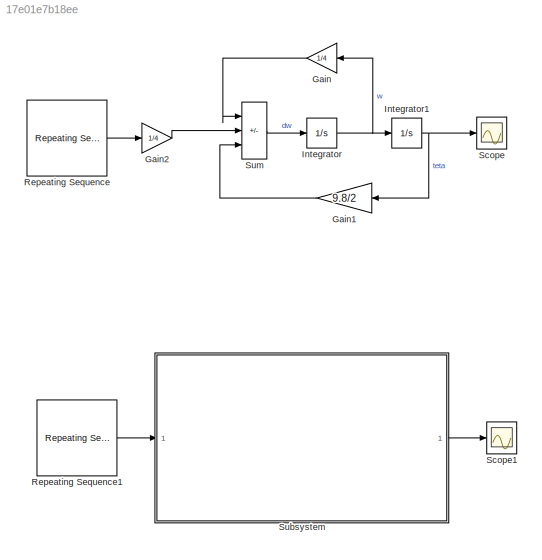
MODEL slx_17e01e7b18ee
KIND model
CONFIG AbsTol = auto
CONFIG EnableMultiTasking = off
CONFIG FixedStep = auto
CONFIG MaxStep = auto
CONFIG MinStep = auto
CONFIG RelTol = 1e-3
CONFIG SampleTimeConstraint = Unconstrained
CONFIG SolverName = VariableStepAuto
CONFIG StartTime = 0.0
CONFIG StopTime = 40
BLOCK [Gain] Gain
  Gain = 1/4
BLOCK [Gain] Gain1
  Gain = 9.8/2
BLOCK [Gain] Gain2
  Gain = 1/4
BLOCK [Integrator] Integrator
BLOCK [Integrator] Integrator1
BLOCK [Reference] Repeating Sequence  REF=simulink/Sources/Repeating
Sequence
  SourceBlock = simulink/Sources/Repeating\nSequence
  SourceType = Repeating table
BLOCK [Reference] Repeating Sequence1  REF=simulink/Sources/Repeating
Sequence
  SourceBlock = simulink/Sources/Repeating\nSequence
  SourceType = Repeating table
BLOCK [Scope] Scope
  Floating = off
  NumInputPorts = 1
  ScopeSpecificationString = Simulink.scopes.TimeScopeBlockCfg('CurrentConfiguration', extmgr.ConfigurationSet(extmgr.Configuration('Core','General UI',true),extmgr.Configuration('Core','Source UI',true),extmgr.Configuration('Sources','WiredSimulink',true),extmgr.Configuration('Visuals','Time Domain',true,'SerializedDisplays',{struct('MinYLimReal','-0.22305','MaxYLimReal','0.26062','YLabelReal','','MinYLimMag','0.00000','MaxY...<+1447ch>
BLOCK [Scope] Scope1
  Floating = off
  NumInputPorts = 1
  ScopeSpecificationString = Simulink.scopes.TimeScopeBlockCfg('CurrentConfiguration', extmgr.ConfigurationSet(extmgr.Configuration('Core','General UI',true),extmgr.Configuration('Core','Source UI',true),extmgr.Configuration('Sources','WiredSimulink',true,'DataLoggingVariableName','ScopeData1'),extmgr.Configuration('Visuals','Time Domain',true,'SerializedDisplays',{struct('MinYLimReal','-0.22305','MaxYLimReal','0.26062','YLab...<+1512ch>
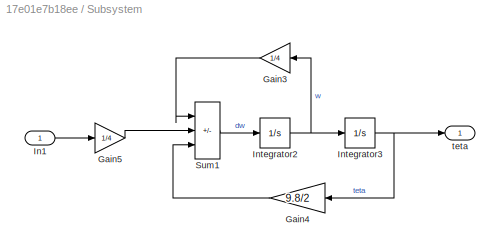
BLOCK [SubSystem] Subsystem
BLOCK [Gain] Subsystem/Gain3
  Gain = 1/4
BLOCK [Gain] Subsystem/Gain4
  Gain = 9.8/2
BLOCK [Gain] Subsystem/Gain5
  Gain = 1/4
BLOCK [Inport] Subsystem/In1
BLOCK [Integrator] Subsystem/Integrator2
BLOCK [Integrator] Subsystem/Integrator3
BLOCK [Sum] Subsystem/Sum1
  IconShape = rectangular
  Inputs = |-+-
BLOCK [Outport] Subsystem/teta
BLOCK [Sum] Sum
  IconShape = rectangular
  Inputs = |-+-
LINE Gain1:1 -> Sum:3
LINE Gain2:1 -> Sum:2
LINE Gain:1 -> Sum:1
NET Integrator1:1 -> Gain1:1, Scope:1
NET Integrator:1 -> Gain:1, Integrator1:1
LINE Repeating Sequence1:1 -> Subsystem:1
LINE Repeating Sequence:1 -> Gain2:1
LINE Subsystem/Gain3:1 -> Subsystem/Sum1:1
LINE Subsystem/Gain4:1 -> Subsystem/Sum1:3
LINE Subsystem/Gain5:1 -> Subsystem/Sum1:2
LINE Subsystem/In1:1 -> Subsystem/Gain5:1
NET Subsystem/Integrator2:1 -> Subsystem/Gain3:1, Subsystem/Integrator3:1
NET Subsystem/Integrator3:1 -> Subsystem/Gain4:1, Subsystem/teta:1
LINE Subsystem/Sum1:1 -> Subsystem/Integrator2:1
LINE Subsystem:1 -> Scope1:1
LINE Sum:1 -> Integrator:1
note: NET lines group one-source signal fan-out (src -> all destinations, sorted); 1:1 wires keep LINE
